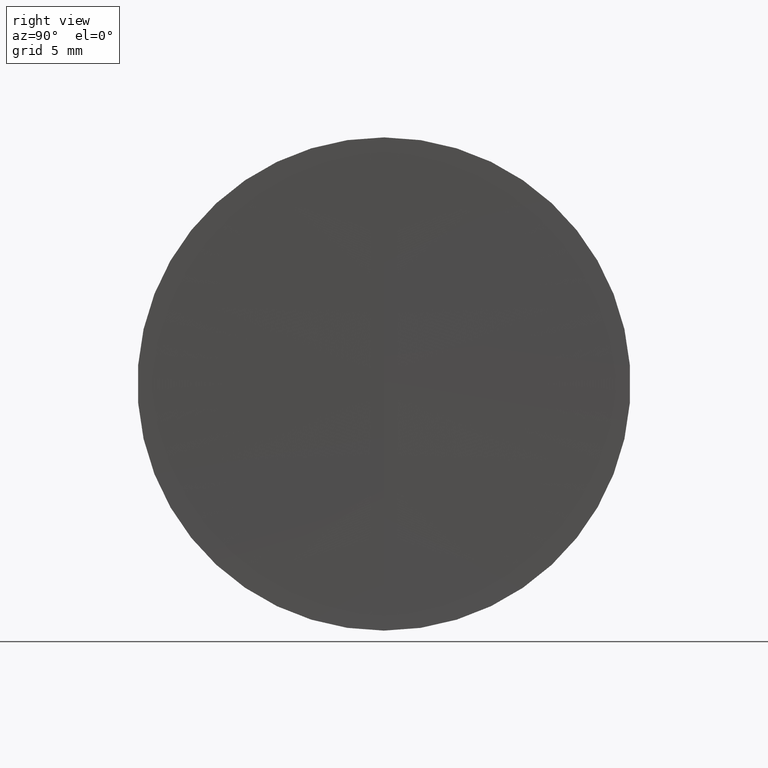
[diagram: clean part render]
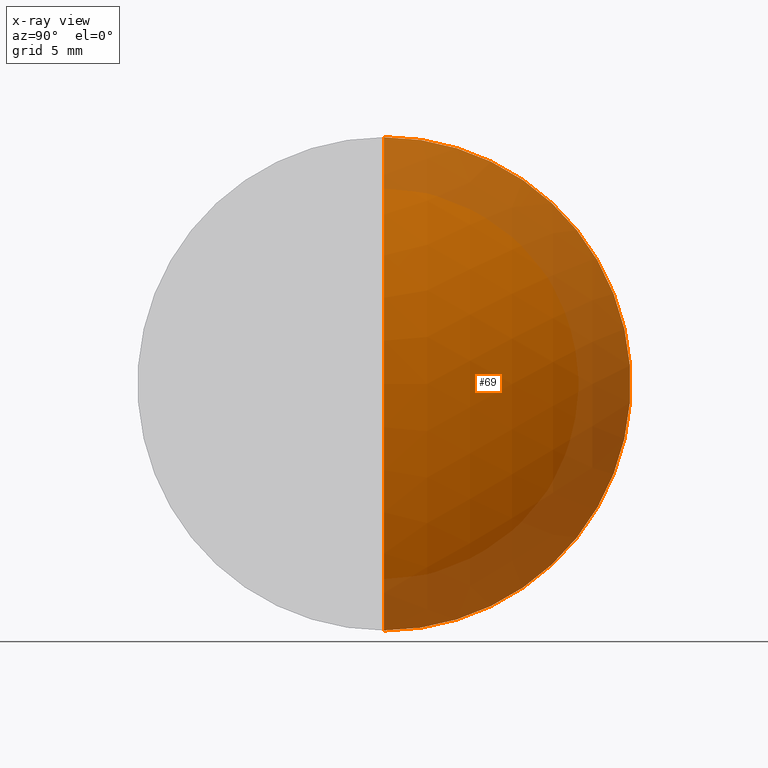
[diagram: x-ray — body ghosted, one internal face saturated and labeled with its STEP entity id]
A machine part, right view, then the same camera in x-ray: the body is ghosted and one INTERNAL B-rep face — a face not visible from any outside direction — is saturated and labeled: STEP entity #69.
In plain terms, the highlighted spherical surface has radius 23.66 mm.
Its self-contained STEP definition (entity closure, byte-faithful):
#1 = EDGE_CURVE ( 'NONE', #113, #292, #172, .T. ) ;
#2 = DIRECTION ( 'NONE',  ( -1.000000000000000000, -0.0000000000000000000, -0.0000000000000000000 ) ) ;
#9 = CARTESIAN_POINT ( 'NONE',  ( 36.76664125472041200, 1.555301434917138400E-015, -12.69999999999999900 ) ) ;
#20 = VERTEX_POINT ( 'NONE', #9 ) ;
#35 = CARTESIAN_POINT ( 'NONE',  ( 36.76664125472041200, 0.0000000000000000000, 0.0000000000000000000 ) ) ;
#44 = AXIS2_PLACEMENT_3D ( 'NONE', #326, #252, #174 ) ;
#55 = DIRECTION ( 'NONE',  ( 0.0000000000000000000, -1.224646799147353200E-016, 1.000000000000000000 ) ) ;
#59 = DIRECTION ( 'NONE',  ( 0.0000000000000000000, 0.0000000000000000000, 1.000000000000000000 ) ) ;
#65 = DIRECTION ( 'NONE',  ( 0.0000000000000000000, 0.0000000000000000000, 1.000000000000000000 ) ) ;
#69 = ADVANCED_FACE ( 'NONE', ( #152 ), #213, .T. ) ;
#98 = DIRECTION ( 'NONE',  ( -0.0000000000000000000, 1.000000000000000000, 1.224646799147353200E-016 ) ) ;
#105 = EDGE_CURVE ( 'NONE', #292, #20, #253, .T. ) ;
#113 = VERTEX_POINT ( 'NONE', #303 ) ;
#136 = CARTESIAN_POINT ( 'NONE',  ( 16.80403621429545100, 0.0000000000000000000, 0.0000000000000000000 ) ) ;
#152 = FACE_OUTER_BOUND ( 'NONE', #171, .T. ) ;
#166 = ORIENTED_EDGE ( 'NONE', *, *, #105, .F. ) ;
#171 = EDGE_LOOP ( 'NONE', ( #341, #224, #166 ) ) ;
#172 = CIRCLE ( 'NONE', #44, 23.66000000000000400 ) ;
#174 = DIRECTION ( 'NONE',  ( 0.0000000000000000000, 0.0000000000000000000, -1.000000000000000000 ) ) ;
#177 = DIRECTION ( 'NONE',  ( 0.0000000000000000000, 1.000000000000000000, 0.0000000000000000000 ) ) ;
#213 = SPHERICAL_SURFACE ( 'NONE', #334, 23.66000000000000400 ) ;
#224 = ORIENTED_EDGE ( 'NONE', *, *, #275, .T. ) ;
#225 = AXIS2_PLACEMENT_3D ( 'NONE', #35, #2, #65 ) ;
#227 = CARTESIAN_POINT ( 'NONE',  ( 16.80403621429545100, 0.0000000000000000000, 0.0000000000000000000 ) ) ;
#231 = CARTESIAN_POINT ( 'NONE',  ( 36.76664125472041200, 0.0000000000000000000, 12.69999999999999900 ) ) ;
#252 = DIRECTION ( 'NONE',  ( 0.0000000000000000000, -1.000000000000000000, 0.0000000000000000000 ) ) ;
#253 = CIRCLE ( 'NONE', #225, 12.69999999999999900 ) ;
#275 = EDGE_CURVE ( 'NONE', #113, #20, #340, .T. ) ;
#292 = VERTEX_POINT ( 'NONE', #231 ) ;
#303 = CARTESIAN_POINT ( 'NONE',  ( 40.46403621429545400, 0.0000000000000000000, 1.448757163391319200E-015 ) ) ;
#326 = CARTESIAN_POINT ( 'NONE',  ( 16.80403621429545100, 0.0000000000000000000, 0.0000000000000000000 ) ) ;
#334 = AXIS2_PLACEMENT_3D ( 'NONE', #227, #177, #59 ) ;
#340 = CIRCLE ( 'NONE', #343, 23.66000000000000400 ) ;
#341 = ORIENTED_EDGE ( 'NONE', *, *, #1, .F. ) ;
#343 = AXIS2_PLACEMENT_3D ( 'NONE', #136, #98, #55 ) ;